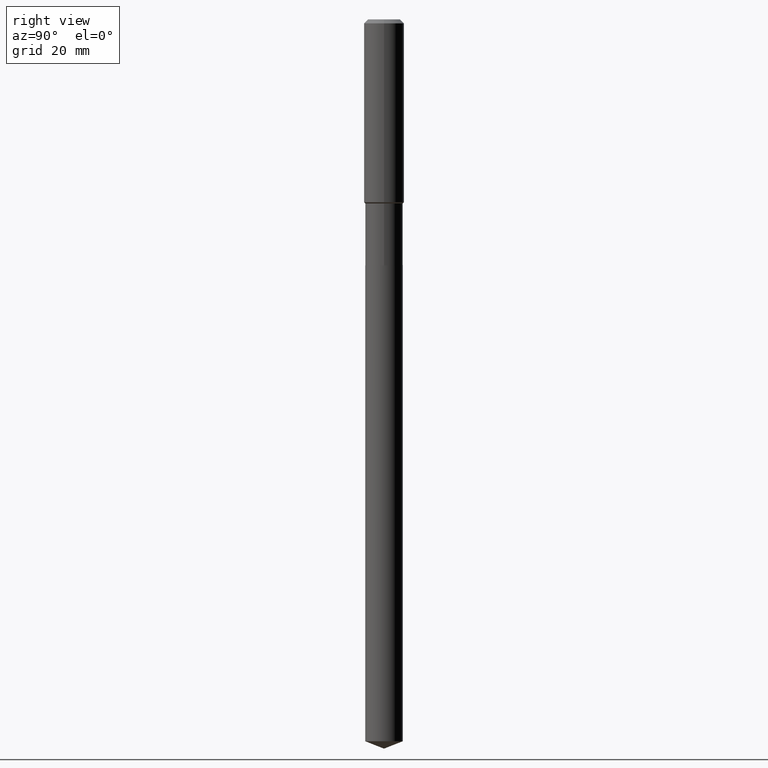
[diagram: clean part render]
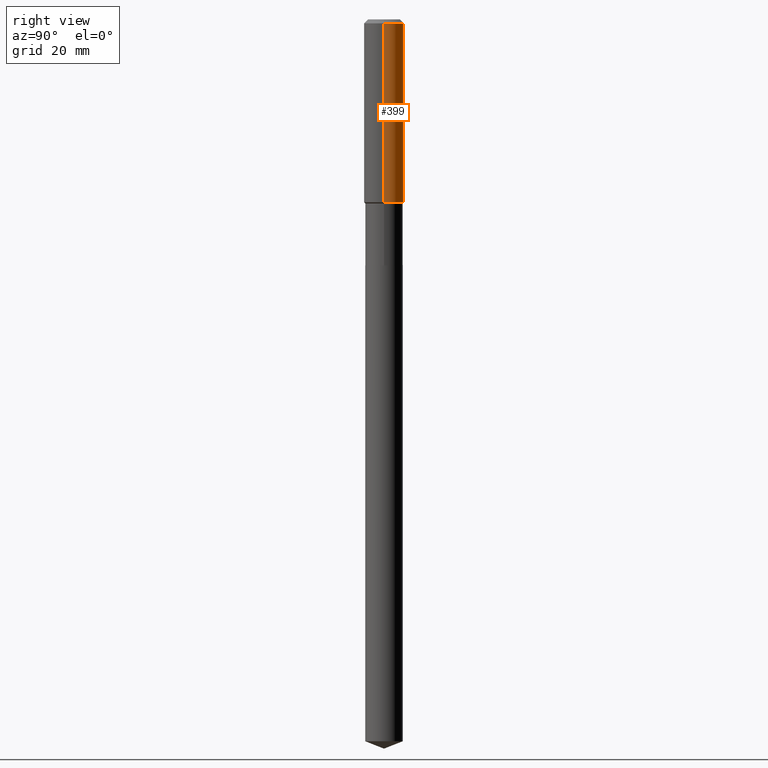
[diagram: same view with one face highlighted and labeled with its STEP entity id]
A machine part, right view. The second image highlights one B-rep face of the part: STEP entity #399.
In plain terms, the highlighted cylindrical surface (edge-blend (fillet) strip) has radius 4.0005 mm, axis along (-0, 0, 1).
Its self-contained STEP definition (entity closure, byte-faithful):
#34 = CARTESIAN_POINT ( 'NONE',  ( 0.1575000000000000011, -1.209798283909146741E-15, -0.03150000000000019451 ) ) ;
#46 = CARTESIAN_POINT ( 'NONE',  ( -0.1575000000000001676, -3.915087559588830636E-15, -1.441850000000000076 ) ) ;
#50 = CARTESIAN_POINT ( 'NONE',  ( -0.1575000000000000011, -1.452982206470116048E-15, -0.03150000000000019451 ) ) ;
#71 = DIRECTION ( 'NONE',  ( -2.445468806185136597E-29, 3.491481338843145583E-15, 1.000000000000000000 ) ) ;
#81 = ORIENTED_EDGE ( 'NONE', *, *, #329, .F. ) ;
#97 = LINE ( 'NONE', #356, #432 ) ;
#103 = CIRCLE ( 'NONE', #224, 0.1575000000000000011 ) ;
#108 = CARTESIAN_POINT ( 'NONE',  ( 0.1575000000000001676, -6.134008990146578875E-15, -1.441850000000000076 ) ) ;
#120 = ORIENTED_EDGE ( 'NONE', *, *, #413, .F. ) ;
#121 = CARTESIAN_POINT ( 'NONE',  ( 3.525999198198039773E-29, -5.034192368410989029E-15, -1.441850000000000076 ) ) ;
#132 = ORIENTED_EDGE ( 'NONE', *, *, #168, .T. ) ;
#153 = VERTEX_POINT ( 'NONE', #46 ) ;
#157 = DIRECTION ( 'NONE',  ( 1.000000000000000000, -6.982962677686265922E-15, 0.000000000000000000 ) ) ;
#168 = EDGE_CURVE ( 'NONE', #440, #153, #190, .T. ) ;
#177 = DIRECTION ( 'NONE',  ( -2.445468806185136597E-29, 3.491481338843145583E-15, 1.000000000000000000 ) ) ;
#190 = CIRCLE ( 'NONE', #318, 0.1575000000000001676 ) ;
#196 = EDGE_LOOP ( 'NONE', ( #132, #305, #81, #120 ) ) ;
#199 = CARTESIAN_POINT ( 'NONE',  ( 7.703226739483228723E-31, -1.099816621735597661E-16, -0.03150000000000019451 ) ) ;
#213 = CARTESIAN_POINT ( 'NONE',  ( 0.000000000000000000, 0.000000000000000000, 0.000000000000000000 ) ) ;
#224 = AXIS2_PLACEMENT_3D ( 'NONE', #199, #347, #157 ) ;
#257 = VERTEX_POINT ( 'NONE', #34 ) ;
#294 = LINE ( 'NONE', #326, #422 ) ;
#305 = ORIENTED_EDGE ( 'NONE', *, *, #477, .T. ) ;
#316 = FACE_OUTER_BOUND ( 'NONE', #196, .T. ) ;
#318 = AXIS2_PLACEMENT_3D ( 'NONE', #121, #71, #452 ) ;
#326 = CARTESIAN_POINT ( 'NONE',  ( 0.1575000000000000844, -1.099816621735587677E-15, 7.679978421878603638E-30 ) ) ;
#329 = EDGE_CURVE ( 'NONE', #257, #467, #103, .T. ) ;
#333 = AXIS2_PLACEMENT_3D ( 'NONE', #213, #177, #426 ) ;
#347 = DIRECTION ( 'NONE',  ( -2.445468806185136597E-29, 3.491481338843145583E-15, 1.000000000000000000 ) ) ;
#356 = CARTESIAN_POINT ( 'NONE',  ( -0.1575000000000000844, 1.119104808822158392E-15, -7.747322767151481189E-30 ) ) ;
#399 = ADVANCED_FACE ( 'NONE', ( #316 ), #475, .T. ) ;
#404 = DIRECTION ( 'NONE',  ( -2.445468806185136877E-29, 3.491481338843145188E-15, 1.000000000000000000 ) ) ;
#413 = EDGE_CURVE ( 'NONE', #440, #257, #294, .T. ) ;
#422 = VECTOR ( 'NONE', #404, 39.37007874015748143 ) ;
#426 = DIRECTION ( 'NONE',  ( 1.000000000000000000, -6.982962677686267499E-15, 4.876176775795936353E-29 ) ) ;
#432 = VECTOR ( 'NONE', #435, 39.37007874015748143 ) ;
#435 = DIRECTION ( 'NONE',  ( -2.445468806185136877E-29, 3.491481338843145188E-15, 1.000000000000000000 ) ) ;
#440 = VERTEX_POINT ( 'NONE', #108 ) ;
#452 = DIRECTION ( 'NONE',  ( 1.000000000000000000, -6.982962677686267499E-15, 0.000000000000000000 ) ) ;
#467 = VERTEX_POINT ( 'NONE', #50 ) ;
#475 = CYLINDRICAL_SURFACE ( 'NONE', #333, 0.1575000000000000844 ) ;
#477 = EDGE_CURVE ( 'NONE', #153, #467, #97, .T. ) ;